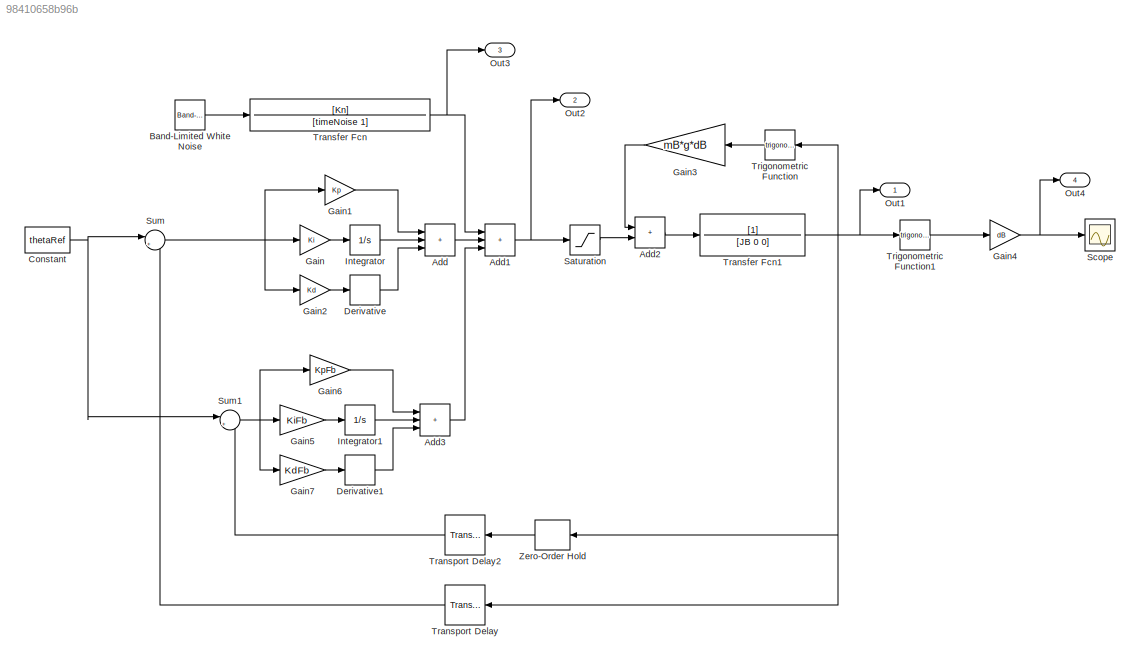
MODEL slx_98410658b96b
KIND model
CONFIG AbsTol = auto
CONFIG EnableMultiTasking = off
CONFIG FixedStep = 0.01
CONFIG MaxStep = auto
CONFIG MinStep = auto
CONFIG RelTol = 1e-3
CONFIG SampleTimeConstraint = Unconstrained
CONFIG Solver = ode5
CONFIG SolverName = ode5
CONFIG StartTime = 0.0
CONFIG StopTime = 800
BLOCK [Sum] Add
  IconShape = rectangular
  Inputs = +++
  Ports = [3, 1]
BLOCK [Sum] Add1
  IconShape = rectangular
  Inputs = +++
  Ports = [3, 1]
BLOCK [Sum] Add2
  IconShape = rectangular
  Ports = [2, 1]
BLOCK [Sum] Add3
  IconShape = rectangular
  Inputs = +++
  Ports = [3, 1]
BLOCK [Reference] Band-Limited White Noise  REF=simulink/Sources/Band-Limited
White Noise
  Ports = [0, 1]
  SourceBlock = simulink/Sources/Band-Limited\nWhite Noise
  SourceProductBaseCode = SL
  SourceType = Band-Limited White Noise.
BLOCK [Constant] Constant
  Value = thetaRef
BLOCK [Derivative] Derivative
  CoefficientInTFapproximation = 0
BLOCK [Derivative] Derivative1
  CoefficientInTFapproximation = 0
BLOCK [Gain] Gain
  Gain = Ki
BLOCK [Gain] Gain1
  Gain = Kp
BLOCK [Gain] Gain2
  Gain = Kd
BLOCK [Gain] Gain3
  Gain = mB*g*dB
  NameLocation = top
BLOCK [Gain] Gain4
  Gain = dB
BLOCK [Gain] Gain5
  Gain = KiFb
BLOCK [Gain] Gain6
  Gain = KpFb
BLOCK [Gain] Gain7
  Gain = KdFb
BLOCK [Integrator] Integrator
  Ports = [1, 1]
BLOCK [Integrator] Integrator1
  Ports = [1, 1]
BLOCK [Outport] Out1
  SignalName = thetaOut
BLOCK [Outport] Out2
  Port = 2
  SignalName = controlOutput
BLOCK [Outport] Out3
  Port = 3
  SignalName = disturb
BLOCK [Outport] Out4
  Port = 4
  SignalName = disp
BLOCK [Saturate] Saturation
  LowerLimit = -maxControlOutput
  UpperLimit = maxControlOutput
BLOCK [Scope] Scope
  Floating = off
  NumInputPorts = 1
  Ports = [1]
  ScopeSpecificationString = Simulink.scopes.TimeScopeBlockCfg('CurrentConfiguration', extmgr.ConfigurationSet(extmgr.Configuration('Core','General UI',true,'FigureColor',[1 1 1]),extmgr.Configuration('Core','Source UI',true),extmgr.Configuration('Sources','WiredSimulink',true),extmgr.Configuration('Visuals','Time Domain',true,'SerializedDisplays',{struct('MinYLimReal','-1.0875','MaxYLimReal','1.0875','YLabelReal','','MinYLim...<+1568ch>
BLOCK [Sum] Sum
  Inputs = |+-
  Ports = [2, 1]
BLOCK [Sum] Sum1
  Inputs = |+-
  Ports = [2, 1]
BLOCK [TransferFcn] Transfer Fcn
  Denominator = [timeNoise 1]
  Numerator = [Kn]
BLOCK [TransferFcn] Transfer Fcn1
  Denominator = [JB 0 0]
BLOCK [TransportDelay] Transport Delay
  DelayTime = timeDelay
  NameLocation = top
  Ports = [1, 1]
BLOCK [TransportDelay] Transport Delay2
  DelayTime = timeDelay
  NameLocation = top
  Ports = [1, 1]
BLOCK [Trigonometry] Trigonometric Function
  NameLocation = top
  Ports = [1, 1]
BLOCK [Trigonometry] Trigonometric Function1
  Ports = [1, 1]
BLOCK [ZeroOrderHold] Zero-Order Hold
  NameLocation = top
  SampleTime = samplingTime
NET Add1:1 -> Out2:1, Saturation:1
LINE Add2:1 -> Transfer Fcn1:1
LINE Add3:1 -> Add1:3
LINE Add:1 -> Add1:2
LINE Band-Limited White Noise:1 -> Transfer Fcn:1
NET Constant:1 -> Sum1:1, Sum:1
LINE Derivative1:1 -> Add3:3
LINE Derivative:1 -> Add:3
LINE Gain1:1 -> Add:1
LINE Gain2:1 -> Derivative:1
LINE Gain3:1 -> Add2:1
NET Gain4:1 -> Out4:1, Scope:1
LINE Gain5:1 -> Integrator1:1
LINE Gain6:1 -> Add3:1
LINE Gain7:1 -> Derivative1:1
LINE Gain:1 -> Integrator:1
LINE Integrator1:1 -> Add3:2
LINE Integrator:1 -> Add:2
LINE Saturation:1 -> Add2:2
NET Sum1:1 -> Gain5:1, Gain6:1, Gain7:1
NET Sum:1 -> Gain1:1, Gain2:1, Gain:1
NET Transfer Fcn1:1 -> Out1:1, Transport Delay:1, Trigonometric Function1:1, Trigonometric Function:1, Zero-Order Hold:1
NET Transfer Fcn:1 -> Add1:1, Out3:1
LINE Transport Delay2:1 -> Sum1:2
LINE Transport Delay:1 -> Sum:2
LINE Trigonometric Function1:1 -> Gain4:1
LINE Trigonometric Function:1 -> Gain3:1
LINE Zero-Order Hold:1 -> Transport Delay2:1
note: NET lines group one-source signal fan-out (src -> all destinations, sorted); 1:1 wires keep LINE
